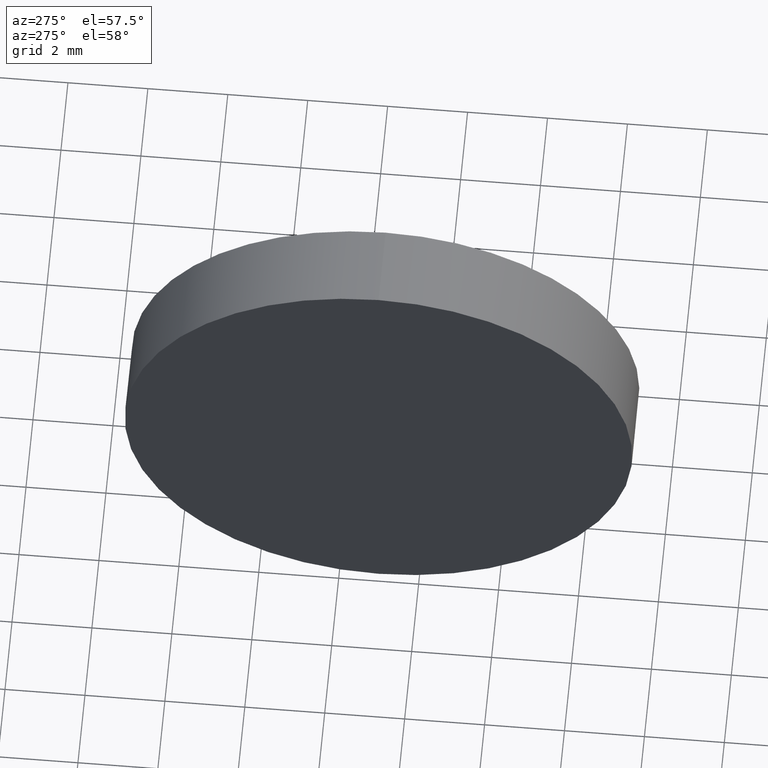
[diagram: clean part render]
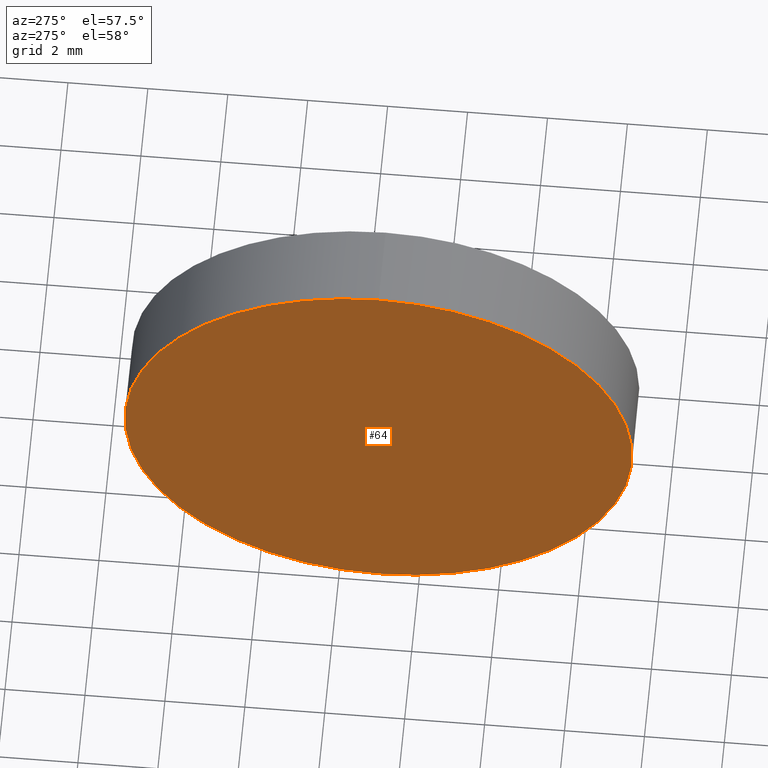
[diagram: same view with one face highlighted and labeled with its STEP entity id]
A machine part, auxiliary view. The second image highlights one B-rep face of the part: STEP entity #64.
In plain terms, the highlighted planar face has unit normal (1, 0, 0).
Its self-contained STEP definition (entity closure, byte-faithful):
#2 = CIRCLE ( 'NONE', #55, 6.350000000000000500 ) ;
#5 = CARTESIAN_POINT ( 'NONE',  ( 452.0422824048600900, -0.9922208549258472200, 0.0000000000000000000 ) ) ;
#10 = AXIS2_PLACEMENT_3D ( 'NONE', #5, #139, #28 ) ;
#28 = DIRECTION ( 'NONE',  ( 0.0000000000000000000, 0.0000000000000000000, 1.000000000000000000 ) ) ;
#31 = CIRCLE ( 'NONE', #10, 6.350000000000000500 ) ;
#40 = VERTEX_POINT ( 'NONE', #109 ) ;
#54 = DIRECTION ( 'NONE',  ( 0.0000000000000000000, 0.0000000000000000000, -1.000000000000000000 ) ) ;
#55 = AXIS2_PLACEMENT_3D ( 'NONE', #153, #111, #140 ) ;
#60 = FACE_OUTER_BOUND ( 'NONE', #73, .T. ) ;
#64 = ADVANCED_FACE ( 'NONE', ( #60 ), #151, .F. ) ;
#73 = EDGE_LOOP ( 'NONE', ( #105, #148 ) ) ;
#89 = DIRECTION ( 'NONE',  ( 1.000000000000000000, 0.0000000000000000000, 0.0000000000000000000 ) ) ;
#90 = CARTESIAN_POINT ( 'NONE',  ( 452.0422824048600900, -0.9922208549258472200, 0.0000000000000000000 ) ) ;
#105 = ORIENTED_EDGE ( 'NONE', *, *, #164, .T. ) ;
#109 = CARTESIAN_POINT ( 'NONE',  ( 452.0422824048600900, -0.9922208549258463300, -6.350000000000000500 ) ) ;
#111 = DIRECTION ( 'NONE',  ( -1.000000000000000000, -0.0000000000000000000, -0.0000000000000000000 ) ) ;
#125 = EDGE_CURVE ( 'NONE', #40, #178, #31, .T. ) ;
#139 = DIRECTION ( 'NONE',  ( -1.000000000000000000, -0.0000000000000000000, -0.0000000000000000000 ) ) ;
#140 = DIRECTION ( 'NONE',  ( 0.0000000000000000000, 0.0000000000000000000, 1.000000000000000000 ) ) ;
#141 = CARTESIAN_POINT ( 'NONE',  ( 452.0422824048600900, -0.9922208549258472200, 6.350000000000000500 ) ) ;
#148 = ORIENTED_EDGE ( 'NONE', *, *, #125, .T. ) ;
#151 = PLANE ( 'NONE',  #176 ) ;
#153 = CARTESIAN_POINT ( 'NONE',  ( 452.0422824048600900, -0.9922208549258472200, 0.0000000000000000000 ) ) ;
#164 = EDGE_CURVE ( 'NONE', #178, #40, #2, .T. ) ;
#176 = AXIS2_PLACEMENT_3D ( 'NONE', #90, #89, #54 ) ;
#178 = VERTEX_POINT ( 'NONE', #141 ) ;